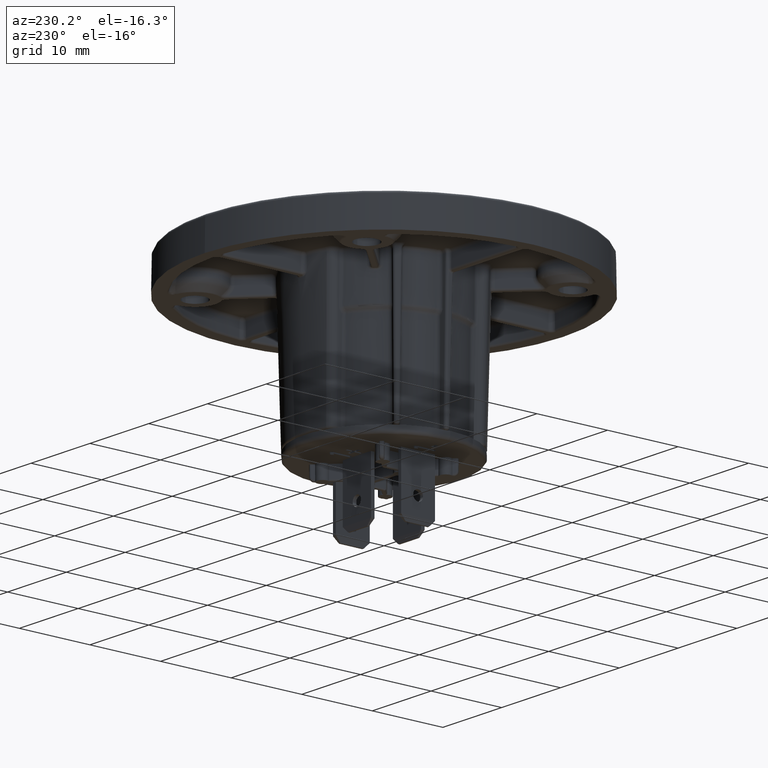
[diagram: clean part render]
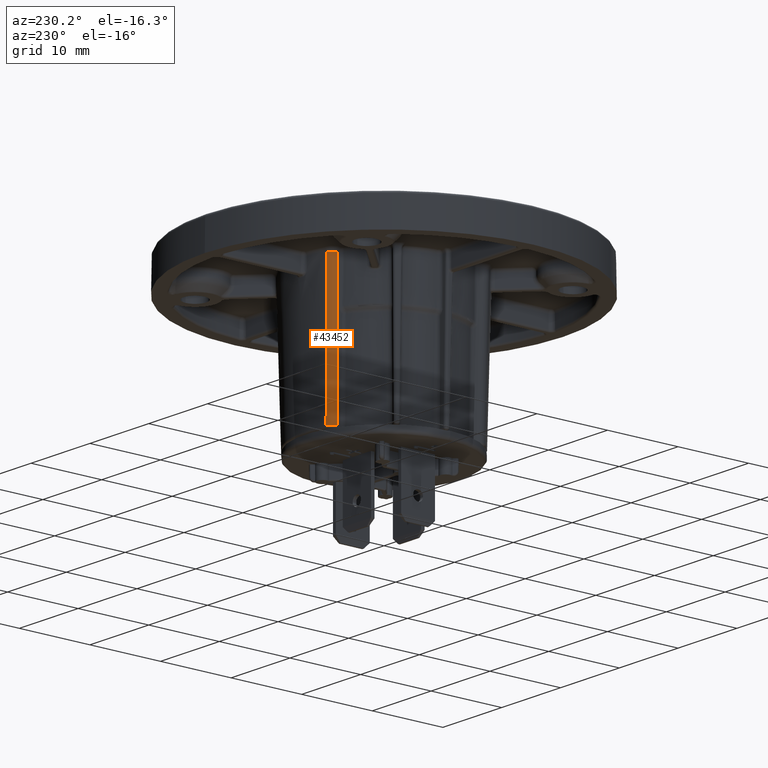
[diagram: same view with one face highlighted and labeled with its STEP entity id]
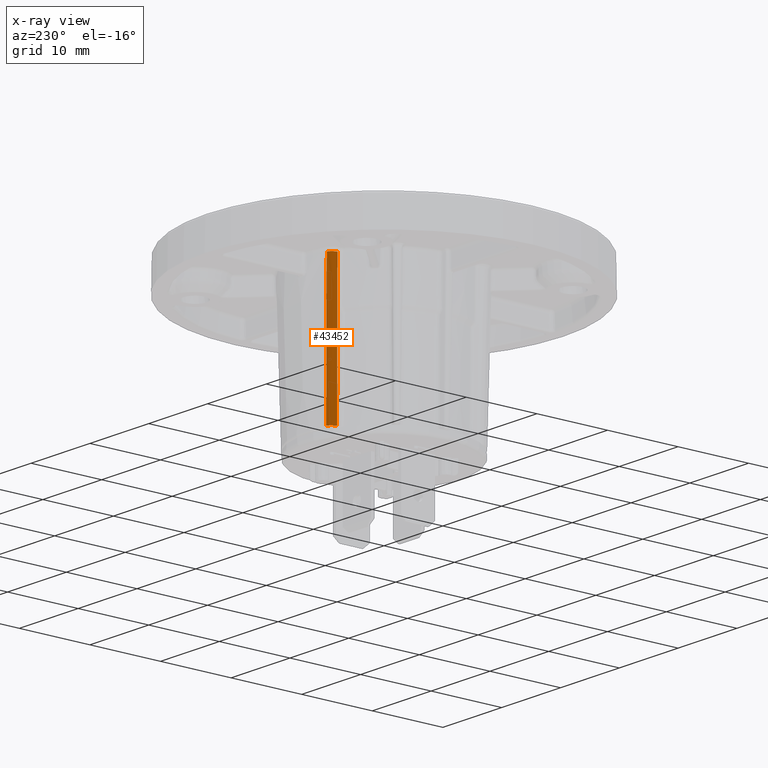
[diagram: x-ray of the same camera — body ghosted, the highlighted face saturated]
A machine part, auxiliary view. The second image highlights one B-rep face of the part: STEP entity #43452.
The next image is the same camera in x-ray: the body ghosted, the highlighted face saturated — about 0% of this face is hidden behind the body in this view.
In plain terms, the highlighted face is a freeform B-spline surface patch.
Its self-contained STEP definition (entity closure, byte-faithful):
#376=CARTESIAN_POINT('',(-3.648318408878E0,1.115584174608E1,2.013088473496E0));
#377=CARTESIAN_POINT('',(-3.607413864380E0,1.112877724622E1,5.451884497966E-1));
#378=CARTESIAN_POINT('',(-3.523665173541E0,1.107316623770E1,-2.458301752610E0));
#379=CARTESIAN_POINT('',(-3.393652976755E0,1.098617032203E1,-7.114498048169E0));
#380=CARTESIAN_POINT('',(-3.254854986199E0,1.089253870228E1,-1.207795932308E1));
#381=CARTESIAN_POINT('',(-3.153774736642E0,1.082373311248E1,-1.568655298229E1));
#382=CARTESIAN_POINT('',(-3.101305981485E0,1.078783051780E1,-1.755785308338E1));
#14868=CARTESIAN_POINT('',(-4.337249772973E0,1.020570273474E1,
2.013088474154E0));
#14869=CARTESIAN_POINT('',(-4.298811444461E0,1.017783169078E1,
5.451879303237E-1));
#14870=CARTESIAN_POINT('',(-4.220162298234E0,1.012057437326E1,
-2.458301789109E0));
#14871=CARTESIAN_POINT('',(-4.098235499343E0,1.003104137025E1,
-7.114498385787E0));
#14872=CARTESIAN_POINT('',(-3.968262675569E0,9.934724803718E0,
-1.207796027619E1));
#14873=CARTESIAN_POINT('',(-3.873768375519E0,9.863985256043E0,
-1.568655200745E1));
#14874=CARTESIAN_POINT('',(-3.824766632283E0,9.827085938558E0,
-1.755785308449E1));
#14915=CARTESIAN_POINT('',(-3.101305981485E0,1.078783051780E1,
-1.755785308338E1));
#14916=CARTESIAN_POINT('',(-3.131647093289E0,1.077910286485E1,
-1.755803972975E1));
#14917=CARTESIAN_POINT('',(-3.190863608083E0,1.075891735797E1,
-1.755838511631E1));
#14918=CARTESIAN_POINT('',(-3.273383025399E0,1.072210137237E1,
-1.755881533419E1));
#14919=CARTESIAN_POINT('',(-3.353247895472E0,1.067744798575E1,
-1.755917826899E1));
#14920=CARTESIAN_POINT('',(-3.428398364705E0,1.062586491530E1,
-1.755946328617E1));
#14921=CARTESIAN_POINT('',(-3.498631186781E0,1.056761156702E1,
-1.755967025640E1));
#14922=CARTESIAN_POINT('',(-3.563245499118E0,1.050321807964E1,
-1.755979683558E1));
#14923=CARTESIAN_POINT('',(-3.621732856948E0,1.043321700754E1,
-1.755984217200E1));
#14924=CARTESIAN_POINT('',(-3.673616574506E0,1.035814957313E1,
-1.755980572571E1));
#14925=CARTESIAN_POINT('',(-3.718414654573E0,1.027878309402E1,
-1.755968824451E1));
#14926=CARTESIAN_POINT('',(-3.755914932794E0,1.019530220019E1,
-1.755948916360E1));
#14927=CARTESIAN_POINT('',(-3.785360391811E0,1.010983672851E1,
-1.755921510186E1));
#14928=CARTESIAN_POINT('',(-3.807635334050E0,1.001922693044E1,
-1.755885439371E1));
#14929=CARTESIAN_POINT('',(-3.821591254862E0,9.924151569614E0,
-1.755840186231E1));
#14930=CARTESIAN_POINT('',(-3.824761541264E0,9.859606419699E0,
-1.755804534974E1));
#14931=CARTESIAN_POINT('',(-3.824766632283E0,9.827085938558E0,
-1.755785308449E1));
#14933=CARTESIAN_POINT('',(-4.337249772973E0,1.020570273474E1,
2.013088474154E0));
#14934=CARTESIAN_POINT('',(-4.337256683212E0,1.023375788578E1,
2.013354370356E0));
#14935=CARTESIAN_POINT('',(-4.334897000270E0,1.028973069218E1,
2.013854292580E0));
#14936=CARTESIAN_POINT('',(-4.324503601405E0,1.037220725107E1,
2.014500026195E0));
#14937=CARTESIAN_POINT('',(-4.307169411545E0,1.045410757296E1,
2.015049781583E0));
#14938=CARTESIAN_POINT('',(-4.283083729881E0,1.053411167648E1,
2.015493210772E0));
#14939=CARTESIAN_POINT('',(-4.252466099862E0,1.061170813635E1,
2.015828463090E0));
#14940=CARTESIAN_POINT('',(-4.215515815433E0,1.068643951092E1,
2.016053764084E0));
#14941=CARTESIAN_POINT('',(-4.172430384767E0,1.075789689146E1,
2.016167836330E0));
#14942=CARTESIAN_POINT('',(-4.123523128545E0,1.082552959451E1,
2.016169553082E0));
#14943=CARTESIAN_POINT('',(-4.069181951258E0,1.088880649472E1,
2.016058952044E0));
#14944=CARTESIAN_POINT('',(-4.009814311953E0,1.094729463219E1,
2.015837261644E0));
#14945=CARTESIAN_POINT('',(-3.945581935141E0,1.100078818075E1,
2.015504630098E0));
#14946=CARTESIAN_POINT('',(-3.877243204414E0,1.104864146875E1,
2.015064897888E0));
#14947=CARTESIAN_POINT('',(-3.804845959793E0,1.109082921268E1,
2.014518327130E0));
#14948=CARTESIAN_POINT('',(-3.728252971955E0,1.112719392988E1,
2.013861940724E0));
#14949=CARTESIAN_POINT('',(-3.675254189425E0,1.114704022088E1,
2.013357029139E0));
#14950=CARTESIAN_POINT('',(-3.648318408878E0,1.115584174608E1,
2.013088473496E0));
#22380=CARTESIAN_POINT('',(-4.337249772973E0,1.020570273474E1,
2.013088474154E0));
#22381=VERTEX_POINT('',#22380);
#22383=VERTEX_POINT('',#14950);
#22891=VERTEX_POINT('',#14915);
#22892=VERTEX_POINT('',#14931);
#43415=CARTESIAN_POINT('',(-4.337491690019E0,1.020587814358E1,
2.022326913411E0));
#43416=CARTESIAN_POINT('',(-4.299966889268E0,1.017866995228E1,
5.893125873260E-1));
#43417=CARTESIAN_POINT('',(-4.207757486886E0,1.011154410457E1,
-2.932022422349E0));
#43418=CARTESIAN_POINT('',(-4.055588402664E0,9.999658747197E0,
-8.743125301445E0));
#43419=CARTESIAN_POINT('',(-3.922205002433E0,9.900331373845E0,
-1.383683185206E1));
#43420=CARTESIAN_POINT('',(-3.843506054719E0,9.841197107923E0,
-1.684222341354E1));
#43421=CARTESIAN_POINT('',(-3.824766632283E0,9.827085938558E0,
-1.755785308449E1));
#43422=CARTESIAN_POINT('',(-4.337261730398E0,1.066871955894E1,
2.013545109791E0));
#43423=CARTESIAN_POINT('',(-4.299736316812E0,1.064151092328E1,
5.805073804546E-1));
#43424=CARTESIAN_POINT('',(-4.207525390452E0,1.057438396622E1,
-2.940885827573E0));
#43425=CARTESIAN_POINT('',(-4.055353715061E0,1.046249670384E1,
-8.752087659422E0));
#43426=CARTESIAN_POINT('',(-3.921967955364E0,1.036316757369E1,
-1.384588431439E1));
#43427=CARTESIAN_POINT('',(-3.843267577317E0,1.030403223303E1,
-1.685133049813E1));
#43428=CARTESIAN_POINT('',(-3.824527812081E0,1.028992080553E1,
-1.756697326005E1));
#43429=CARTESIAN_POINT('',(-4.058799519618E0,1.103852771568E1,
2.013815467489E0));
#43430=CARTESIAN_POINT('',(-4.021273616379E0,1.101131872499E1,
5.807590390615E-1));
#43431=CARTESIAN_POINT('',(-3.929061472368E0,1.094419088156E1,
-2.940680669181E0));
#43432=CARTESIAN_POINT('',(-3.776887726644E0,1.083230209709E1,
-8.751961563823E0));
#43433=CARTESIAN_POINT('',(-3.643500081746E0,1.073297156326E1,
-1.384583021175E1));
#43434=CARTESIAN_POINT('',(-3.564798560868E0,1.067383536390E1,
-1.685132003843E1));
#43435=CARTESIAN_POINT('',(-3.546058521738E0,1.065972373015E1,
-1.756697325997E1));
#43436=CARTESIAN_POINT('',(-3.614049434340E0,1.116663632451E1,
2.023029300215E0));
#43437=CARTESIAN_POINT('',(-3.576523361476E0,1.113942721083E1,
5.899663940662E-1));
#43438=CARTESIAN_POINT('',(-3.484310795648E0,1.107229906033E1,
-2.931489422739E0));
#43439=CARTESIAN_POINT('',(-3.332136332722E0,1.096040974858E1,
-8.742797706243E0));
#43440=CARTESIAN_POINT('',(-3.198748034753E0,1.086107872850E1,
-1.383669129391E1));
#43441=CARTESIAN_POINT('',(-3.120046117977E0,1.080194223166E1,
-1.684219623933E1));
#43442=CARTESIAN_POINT('',(-3.101305983964E0,1.078783052647E1,
-1.755785308428E1));
#43443=(BOUNDED_SURFACE()B_SPLINE_SURFACE(3,3,((#43415,#43416,#43417,#43418,
#43419,#43420,#43421),(#43422,#43423,#43424,#43425,#43426,#43427,#43428),
(#43429,#43430,#43431,#43432,#43433,#43434,#43435),(#43436,#43437,#43438,#43439,
#43440,#43441,#43442)),.UNSPECIFIED.,.F.,.F.,.F.)B_SPLINE_SURFACE_WITH_KNOTS((4,
4),(4,1,1,1,4),(0.E0,1.E0),(4.124968720681E-1,4.590579298499E-1,
5.269111816929E-1,6.013104951324E-1,6.245628785084E-1),.UNSPECIFIED.)GEOMETRIC_REPRESENTATION_ITEM()RATIONAL_B_SPLINE_SURFACE(((1.111731587602E0,
1.111731587602E0,1.111731587602E0,1.111731587602E0,1.111731587602E0,
1.111731587602E0,1.111731587602E0),(9.627561374661E-1,9.627561374661E-1,
9.627561374661E-1,9.627561374661E-1,9.627561374661E-1,9.627561374661E-1,
9.627561374661E-1),(9.627561374661E-1,9.627561374661E-1,9.627561374661E-1,
9.627561374661E-1,9.627561374661E-1,9.627561374661E-1,9.627561374661E-1),(
1.111731587602E0,1.111731587602E0,1.111731587602E0,1.111731587602E0,
1.111731587602E0,1.111731587602E0,1.111731587602E0)))REPRESENTATION_ITEM('')SURFACE());
#43445=ORIENTED_EDGE('',*,*,#43444,.F.);
#43446=ORIENTED_EDGE('',*,*,#24738,.F.);
#43448=ORIENTED_EDGE('',*,*,#43447,.F.);
#43449=ORIENTED_EDGE('',*,*,#43401,.T.);
#43450=EDGE_LOOP('',(#43445,#43446,#43448,#43449));
#43451=FACE_OUTER_BOUND('',#43450,.F.);
#43452=ADVANCED_FACE('',(#43451),#43443,.T.);
#383=B_SPLINE_CURVE_WITH_KNOTS('',3,(#376,#377,#378,#379,#380,#381,#382),
.UNSPECIFIED.,.F.,.F.,(4,1,1,1,4),(0.E0,2.5E-1,5.E-1,7.5E-1,1.E0),
.UNSPECIFIED.);
#14875=B_SPLINE_CURVE_WITH_KNOTS('',3,(#14868,#14869,#14870,#14871,#14872,
#14873,#14874),.UNSPECIFIED.,.F.,.F.,(4,1,1,1,4),(0.E0,2.5E-1,5.E-1,7.5E-1,
1.E0),.UNSPECIFIED.);
#14932=B_SPLINE_CURVE_WITH_KNOTS('',3,(#14915,#14916,#14917,#14918,#14919,
#14920,#14921,#14922,#14923,#14924,#14925,#14926,#14927,#14928,#14929,#14930,
#14931),.UNSPECIFIED.,.F.,.F.,(4,1,1,1,1,1,1,1,1,1,1,1,1,1,4),(0.E0,
7.142857142857E-2,1.428571428571E-1,2.142857142857E-1,2.857142857143E-1,
3.571428571429E-1,4.285714285714E-1,5.E-1,5.714285714286E-1,6.428571428571E-1,
7.142857142857E-1,7.857142857143E-1,8.571428571429E-1,9.285714285714E-1,1.E0),
.UNSPECIFIED.);
#14951=B_SPLINE_CURVE_WITH_KNOTS('',3,(#14933,#14934,#14935,#14936,#14937,
#14938,#14939,#14940,#14941,#14942,#14943,#14944,#14945,#14946,#14947,#14948,
#14949,#14950),.UNSPECIFIED.,.F.,.F.,(4,1,1,1,1,1,1,1,1,1,1,1,1,1,1,4),(0.E0,
6.666666666667E-2,1.333333333333E-1,2.E-1,2.666666666667E-1,3.333333333333E-1,
4.E-1,4.666666666667E-1,5.333333333333E-1,6.E-1,6.666666666667E-1,
7.333333333333E-1,8.E-1,8.666666666667E-1,9.333333333333E-1,1.E0),
.UNSPECIFIED.);
#24738=EDGE_CURVE('',#22383,#22891,#383,.T.);
#43401=EDGE_CURVE('',#22381,#22892,#14875,.T.);
#43444=EDGE_CURVE('',#22891,#22892,#14932,.T.);
#43447=EDGE_CURVE('',#22381,#22383,#14951,.T.);